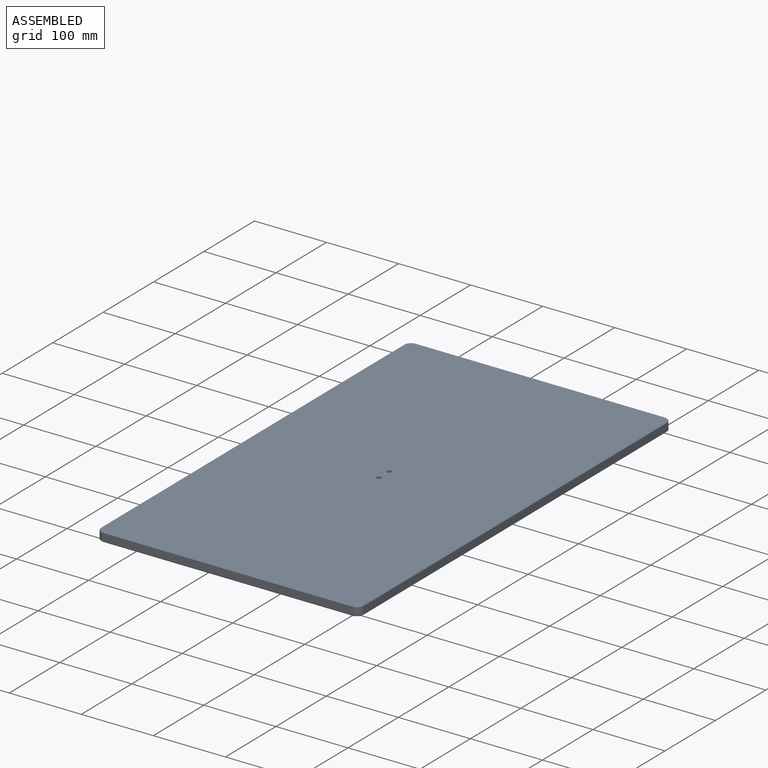
[diagram: assembled view]
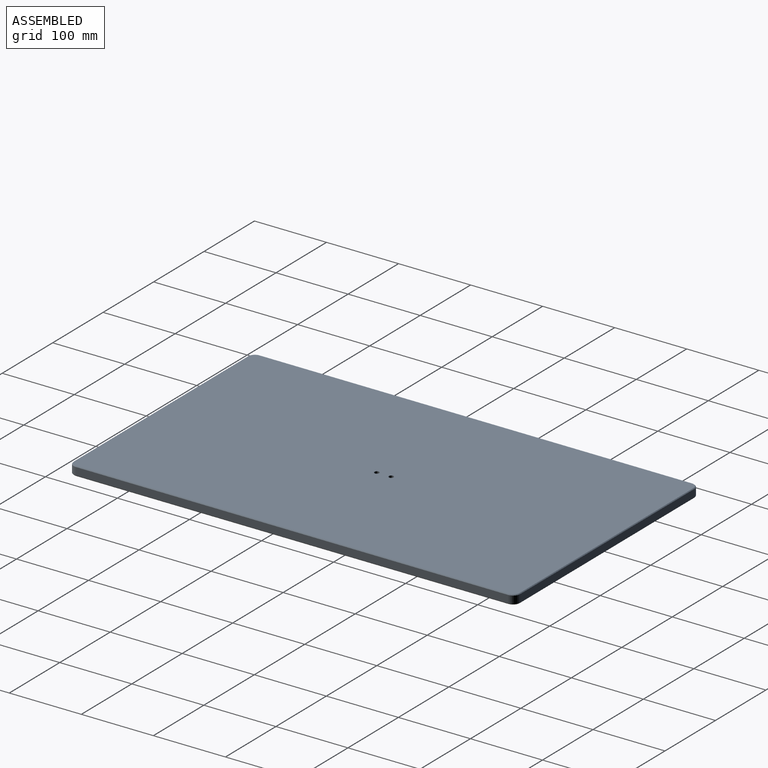
[diagram: assembled view, second angle]
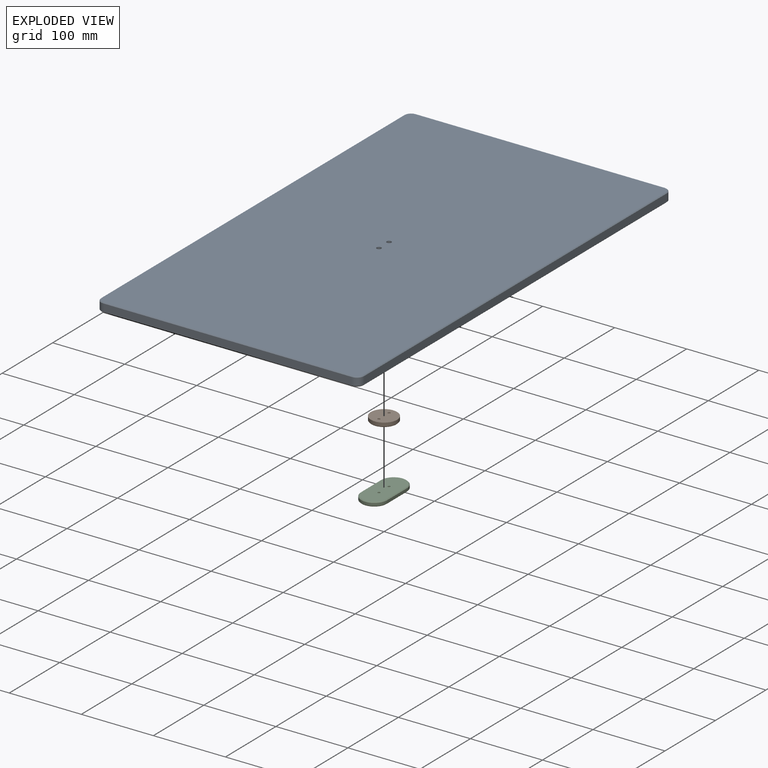
[diagram: exploded view]
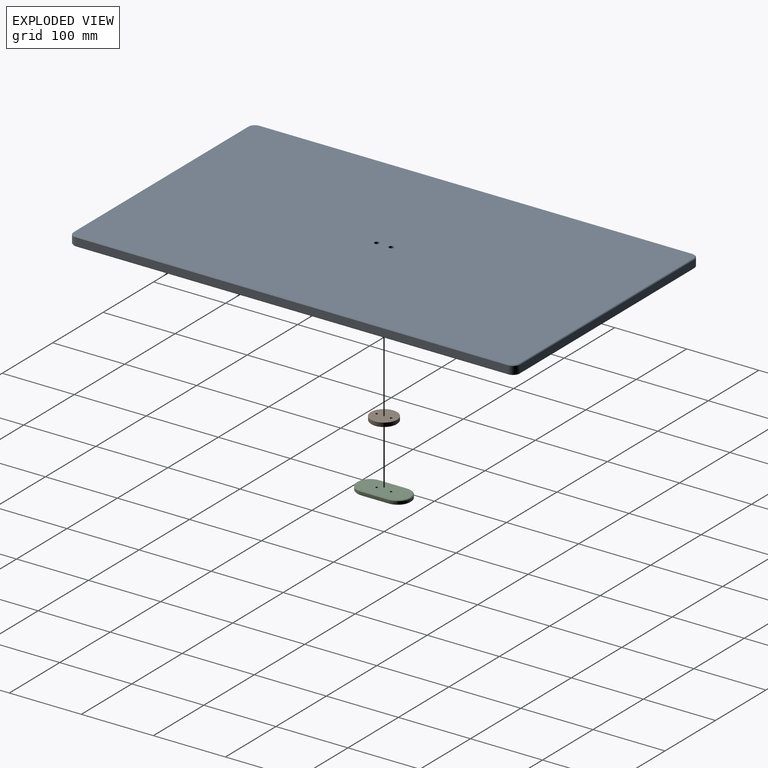
[diagram: exploded view, second angle]
ASSEMBLY  parts=3 mates=2
PART A: 32 faces, bbox 365x620x12.7 mm
  f0: plane 600x10.7mm, normal (1,0,0), area 6420mm2, adj f1,f7,f13,f21
  f1: cylinder r=10mm len=10.7mm, axis (0,0,-1), area 168.1mm2, adj f0,f2,f11,f19
  f2: plane 345x10.7mm, normal (0,1,0), area 3691.5mm2, adj f1,f3,f10,f18
  f3: cylinder r=10mm len=10.7mm, axis (0,0,-1), area 168.1mm2, adj f2,f4,f12,f20
  f4: plane 600x10.7mm, normal (-1,0,0), area 6420mm2, adj f3,f5,f14,f22
  f5: cylinder r=10mm len=10.7mm, axis (0,0,-1), area 168.1mm2, adj f4,f6,f16,f24
  f6: plane 345x10.7mm, normal (0,-1,0), area 3691.5mm2, adj f5,f7,f17,f25
  f7: cylinder r=10mm len=10.7mm, axis (0,0,-1), area 168.1mm2, adj f0,f6,f15,f23
  f8: plane 618x363mm, normal (0,0,1), area 224198.1mm2, adj f18,f19,f20,f21,f22,f23,f24,f25
  f9: plane 618x363mm, normal (0,0,-1), area 224246.3mm2, adj f10,f11,f12,f13,f14,f15,f16,f17
  f10: plane 345x1mm, normal (0,0.71,-0.71), area 487.9mm2, adj f2,f9,f11,f12
  f11: cone r=10mm half-angle=45deg, axis (0,0,1), area 21.1mm2, adj f1,f9,f10,f13
  f12: cone r=10mm half-angle=45deg, axis (0,0,1), area 21.1mm2, adj f3,f9,f10,f14
  f13: plane 600x1mm, normal (0.71,0,-0.71), area 848.5mm2, adj f0,f9,f11,f15
  f14: plane 600x1mm, normal (-0.71,0,-0.71), area 848.5mm2, adj f4,f9,f12,f16
  f15: cone r=10mm half-angle=45deg, axis (0,0,1), area 21.1mm2, adj f7,f9,f13,f17
  f16: cone r=10mm half-angle=45deg, axis (0,0,1), area 21.1mm2, adj f5,f9,f14,f17
  f17: plane 345x1mm, normal (0,-0.71,-0.71), area 487.9mm2, adj f6,f9,f15,f16
  f18: plane 345x1mm, normal (0,0.71,0.71), area 487.9mm2, adj f2,f8,f19,f20
  f19: cone r=9mm half-angle=45deg, axis (0,0,-1), area 21.1mm2, adj f1,f8,f18,f21
  f20: cone r=9mm half-angle=45deg, axis (0,0,-1), area 21.1mm2, adj f3,f8,f18,f22
  f21: plane 600x1mm, normal (0.71,0,0.71), area 848.5mm2, adj f0,f8,f19,f23
  f22: plane 600x1mm, normal (-0.71,0,0.71), area 848.5mm2, adj f4,f8,f20,f24
  f23: cone r=9mm half-angle=45deg, axis (0,0,-1), area 21.1mm2, adj f7,f8,f21,f25
  f24: cone r=9mm half-angle=45deg, axis (0,0,-1), area 21.1mm2, adj f5,f8,f22,f25
  f25: plane 345x1mm, normal (0,-0.71,0.71), area 487.9mm2, adj f6,f8,f23,f24
  f26: cylinder r=1.7mm len=9.7mm, axis (0,0,1), area 103.6mm2, adj f9,f27
  f27: plane 6.5x6.5mm, normal (0,0,1), area 24.1mm2, adj f26,f28
  f28: cylinder r=3.25mm len=6.5mm, axis (0,0,1), area 61.3mm2, adj f8,f27
  f29: cylinder r=1.7mm len=9.7mm, axis (0,0,1), area 103.6mm2, adj f9,f30
  f30: plane 6.5x6.5mm, normal (0,0,1), area 24.1mm2, adj f29,f31
  f31: cylinder r=3.25mm len=6.5mm, axis (0,0,1), area 61.3mm2, adj f8,f30
PART B: 6 faces, bbox 36.5x36.5x6 mm
  f0: plane 34.5x34.5mm, normal (0,0,-1), area 916.7mm2, adj f3,f4,f5
  f1: cylinder r=18.25mm len=36.5mm, axis (0,0,1), area 573.3mm2, adj f2,f3
  f2: plane 36.5x36.5mm, normal (0,0,1), area 1028.2mm2, adj f1,f4,f5
  f3: cone r=17.25mm half-angle=45deg, axis (0,0,1), area 157.7mm2, adj f0,f1
  f4: cylinder r=1.7mm len=6mm, axis (0,0,1), area 64.1mm2, adj f0,f2
  f5: cylinder r=1.7mm len=6mm, axis (0,0,1), area 64.1mm2, adj f0,f2
PART C: 16 faces, bbox 36.5x75x6 mm
  f0: plane 38.5x4mm, normal (1,0,0), area 154mm2, adj f1,f3,f7,f11
  f1: cylinder r=18.25mm len=36.5mm, axis (0,0,1), area 229.3mm2, adj f0,f2,f6,f10
  f2: plane 38.5x4mm, normal (-1,0,0), area 154mm2, adj f1,f3,f8,f12
  f3: cylinder r=18.25mm len=36.5mm, axis (0,0,1), area 229.3mm2, adj f0,f2,f9,f13
  f4: plane 73x34.5mm, normal (0,0,-1), area 2244.9mm2, adj f6,f7,f8,f9,f14,f15
  f5: plane 73x34.5mm, normal (0,0,1), area 2244.9mm2, adj f10,f11,f12,f13,f14,f15
  f6: cone r=18.25mm half-angle=45deg, axis (0,0,1), area 78.9mm2, adj f1,f4,f7,f8
  f7: plane 38.5x1mm, normal (0.71,0,-0.71), area 54.4mm2, adj f0,f4,f6,f9
  f8: plane 38.5x1mm, normal (-0.71,0,-0.71), area 54.4mm2, adj f2,f4,f6,f9
  f9: cone r=18.25mm half-angle=45deg, axis (0,0,1), area 78.9mm2, adj f3,f4,f7,f8
  f10: cone r=17.25mm half-angle=45deg, axis (0,0,-1), area 78.9mm2, adj f1,f5,f11,f12
  f11: plane 38.5x1mm, normal (0.71,0,0.71), area 54.4mm2, adj f0,f5,f10,f13
  f12: plane 38.5x1mm, normal (-0.71,0,0.71), area 54.4mm2, adj f2,f5,f10,f13
  f13: cone r=17.25mm half-angle=45deg, axis (0,0,-1), area 78.9mm2, adj f3,f5,f11,f12
  f14: cylinder r=1.7mm len=6mm, axis (0,0,1), area 64.1mm2, adj f4,f5
  f15: cylinder r=1.7mm len=6mm, axis (0,0,1), area 64.1mm2, adj f4,f5
PLACE A t=(0,0,-14.7)mm
PLACE B t=(0,0,-14.7)mm
PLACE C t=(0,0,-14.7)mm
MATE fastened A.f26 <-> B.f4  axis (0,0,-1) through (0,-10,-12.7)mm
MATE fastened C.f14 <-> B.f4  axis (0,0,1) through (0,-10,-18.7)mm
